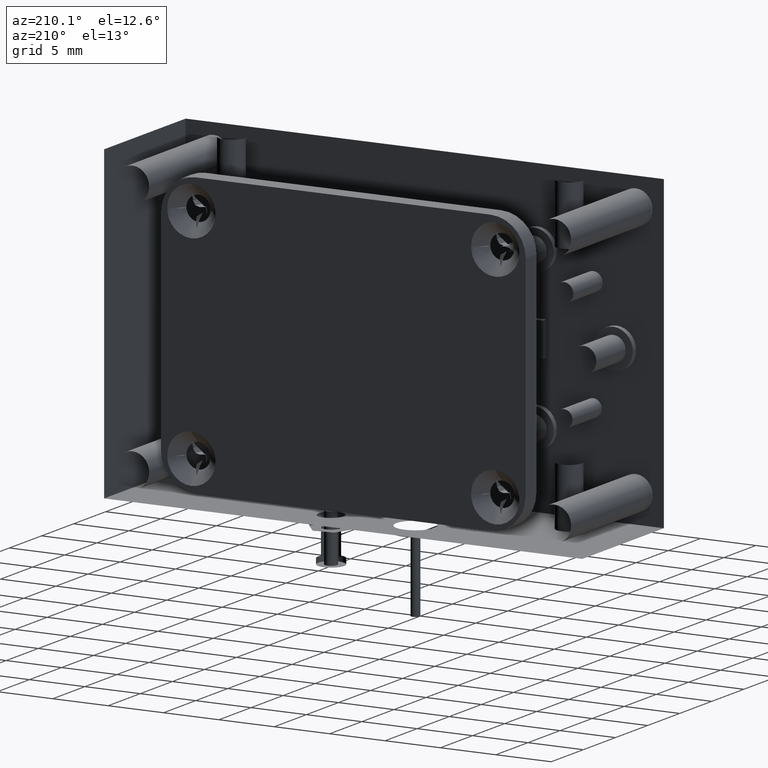
[diagram: clean part render]
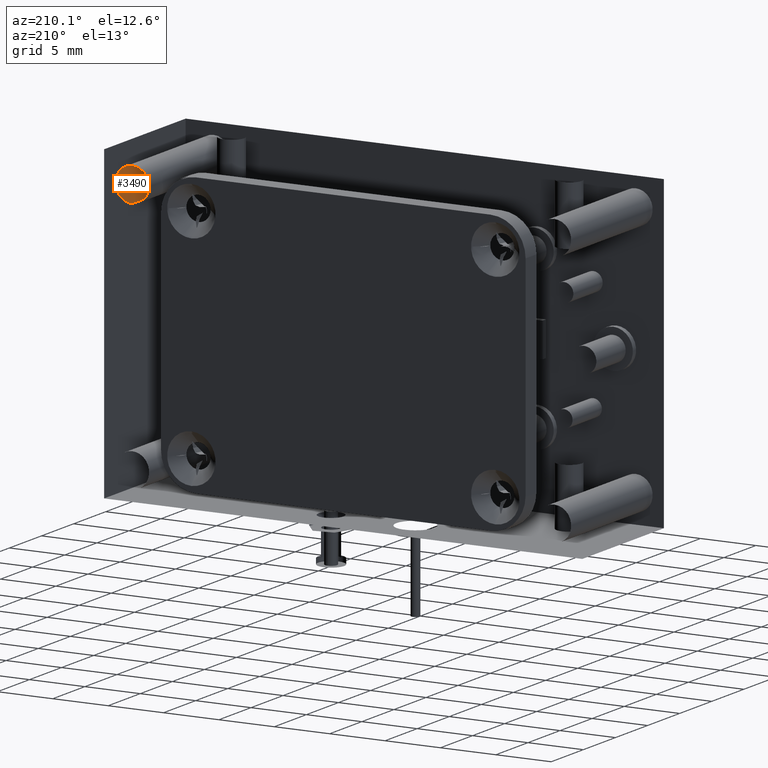
[diagram: same view with one face highlighted and labeled with its STEP entity id]
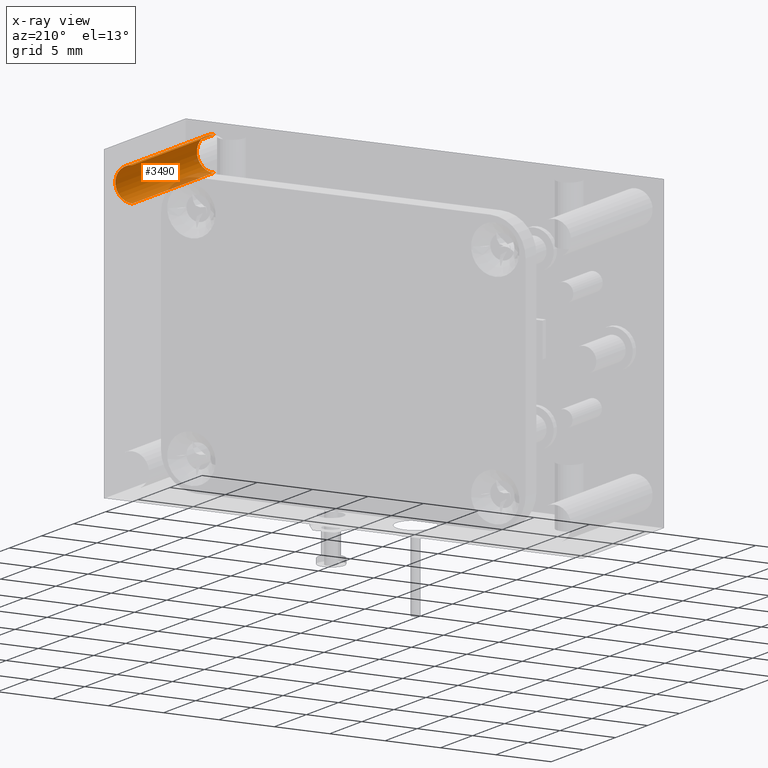
[diagram: x-ray of the same camera — body ghosted, the highlighted face saturated]
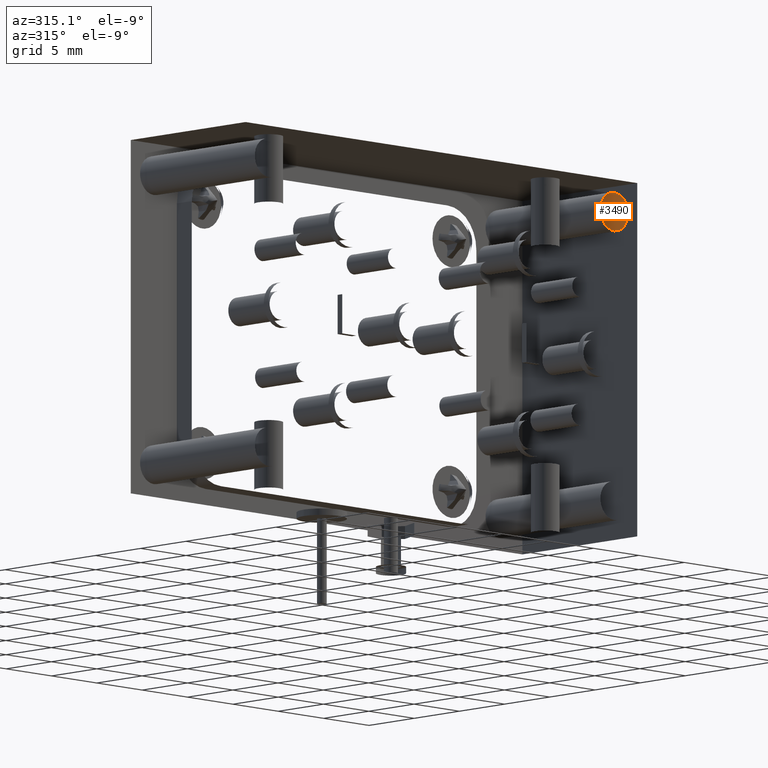
[diagram: same view with one face highlighted and labeled with its STEP entity id]
A machine part, auxiliary view. The second image highlights one B-rep face of the part: STEP entity #3490.
The next image is the same camera in x-ray: the body ghosted, the highlighted face saturated — about 7% of this face is hidden behind the body in this view.
A second angle (auxiliary view) of the same face is appended — the face is thin or edge-on in the first view.
In plain terms, the highlighted cylindrical surface (edge-blend (fillet) strip) has radius 1.524 mm, axis along (0, 1, 0).
Its self-contained STEP definition (entity closure, byte-faithful):
#477 = CARTESIAN_POINT ( 'NONE',  ( 0.6606823744848003800, 2.059071440405353400, 0.9965758433327451800 ) ) ;
#482 = CARTESIAN_POINT ( 'NONE',  ( 0.6606823744848003800, 2.059071440405353400, 0.8765758433327454100 ) ) ;
#513 = DIRECTION ( 'NONE',  ( 0.0000000000000000000, 0.0000000000000000000, 1.000000000000000000 ) ) ;
#538 = CIRCLE ( 'NONE', #4503, 0.05999999999999990800 ) ;
#799 = EDGE_LOOP ( 'NONE', ( #6313, #5274, #3035, #4476 ) ) ;
#859 = EDGE_CURVE ( 'NONE', #2176, #4683, #4424, .T. ) ;
#1044 = CIRCLE ( 'NONE', #6829, 0.05999999999999990800 ) ;
#1187 = EDGE_CURVE ( 'NONE', #6049, #4683, #538, .T. ) ;
#1548 = CARTESIAN_POINT ( 'NONE',  ( 0.6606823744848003800, 1.559071440405353200, 0.9965758433327451800 ) ) ;
#1593 = EDGE_CURVE ( 'NONE', #6063, #6049, #6244, .T. ) ;
#1754 = DIRECTION ( 'NONE',  ( 0.0000000000000000000, 1.000000000000000000, 0.0000000000000000000 ) ) ;
#2176 = VERTEX_POINT ( 'NONE', #1548 ) ;
#2332 = CARTESIAN_POINT ( 'NONE',  ( 0.6606823744848003800, 2.059071440405353400, 0.9365758433327453500 ) ) ;
#2356 = DIRECTION ( 'NONE',  ( 0.0000000000000000000, 0.0000000000000000000, 1.000000000000000000 ) ) ;
#2614 = DIRECTION ( 'NONE',  ( 0.0000000000000000000, 1.000000000000000000, 0.0000000000000000000 ) ) ;
#3035 = ORIENTED_EDGE ( 'NONE', *, *, #1187, .T. ) ;
#3150 = CARTESIAN_POINT ( 'NONE',  ( 0.6606823744848003800, 2.059071440405353400, 0.8765758433327454100 ) ) ;
#3490 = ADVANCED_FACE ( 'NONE', ( #3492 ), #5433, .T. ) ;
#3492 = FACE_OUTER_BOUND ( 'NONE', #799, .T. ) ;
#3573 = CARTESIAN_POINT ( 'NONE',  ( 0.6606823744848003800, 1.559071440405353200, 0.8765758433327454100 ) ) ;
#3922 = DIRECTION ( 'NONE',  ( 0.0000000000000000000, 0.0000000000000000000, 1.000000000000000000 ) ) ;
#4067 = AXIS2_PLACEMENT_3D ( 'NONE', #2332, #1754, #2356 ) ;
#4424 = LINE ( 'NONE', #6611, #7500 ) ;
#4476 = ORIENTED_EDGE ( 'NONE', *, *, #859, .F. ) ;
#4503 = AXIS2_PLACEMENT_3D ( 'NONE', #6391, #5770, #3922 ) ;
#4683 = VERTEX_POINT ( 'NONE', #477 ) ;
#4824 = CARTESIAN_POINT ( 'NONE',  ( 0.6606823744848003800, 1.559071440405353200, 0.9365758433327453500 ) ) ;
#4829 = DIRECTION ( 'NONE',  ( 0.0000000000000000000, 1.000000000000000000, 0.0000000000000000000 ) ) ;
#5183 = EDGE_CURVE ( 'NONE', #6063, #2176, #1044, .T. ) ;
#5274 = ORIENTED_EDGE ( 'NONE', *, *, #1593, .T. ) ;
#5433 = CYLINDRICAL_SURFACE ( 'NONE', #4067, 0.05999999999999990800 ) ;
#5770 = DIRECTION ( 'NONE',  ( -0.0000000000000000000, -1.000000000000000000, -0.0000000000000000000 ) ) ;
#6049 = VERTEX_POINT ( 'NONE', #482 ) ;
#6063 = VERTEX_POINT ( 'NONE', #3573 ) ;
#6244 = LINE ( 'NONE', #3150, #7663 ) ;
#6313 = ORIENTED_EDGE ( 'NONE', *, *, #5183, .F. ) ;
#6391 = CARTESIAN_POINT ( 'NONE',  ( 0.6606823744848003800, 2.059071440405353400, 0.9365758433327453500 ) ) ;
#6611 = CARTESIAN_POINT ( 'NONE',  ( 0.6606823744848003800, 2.059071440405353400, 0.9965758433327451800 ) ) ;
#6694 = DIRECTION ( 'NONE',  ( -0.0000000000000000000, -1.000000000000000000, -0.0000000000000000000 ) ) ;
#6829 = AXIS2_PLACEMENT_3D ( 'NONE', #4824, #6694, #513 ) ;
#7500 = VECTOR ( 'NONE', #4829, 39.37007874015748100 ) ;
#7663 = VECTOR ( 'NONE', #2614, 39.37007874015748100 ) ;